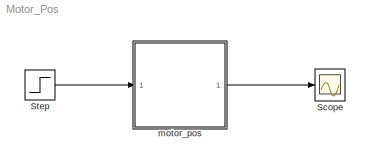
MODEL Motor_Pos
KIND model
BLOCK [Scope] Scope
  DataFormat = StructureWithTime
  Floating = off
  NumInputPorts = 1
  Ports = [1]
  SID = 35
  SampleTime = 0
  ShowLegends = off
  TimeRange = 0.2
  YMax = 10
  YMin = 0
BLOCK [Step] Step
  SID = 57
  SampleTime = 0
  Time = 0
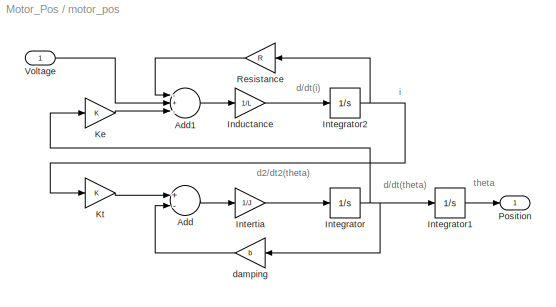
BLOCK [SubSystem] motor_pos
  FunctionWithSeparateData = off
  MaskHideContents = off
  MinAlgLoopOccurrences = off
  Opaque = off
  Ports = [1, 1]
  PropExecContextOutsideSubsystem = off
  RTWSystemCode = Auto
  RequestExecContextInheritance = off
  SID = 31
BLOCK [Sum] motor_pos/Add
  InputSameDT = off
  Inputs = +-
  OutDataTypeStr = Inherit: Inherit via internal rule
  Ports = [2, 1]
  SID = 22
  SaturateOnIntegerOverflow = off
BLOCK [Sum] motor_pos/Add1
  InputSameDT = off
  Inputs = -+-
  OutDataTypeStr = Inherit: Inherit via internal rule
  Ports = [3, 1]
  SID = 20
  SaturateOnIntegerOverflow = off
BLOCK [Gain] motor_pos/Inductance
  Gain = 1/L
  OutDataTypeStr = Inherit: Inherit via internal rule
  ParamDataTypeStr = Inherit: Inherit via internal rule
  SID = 18
  SaturateOnIntegerOverflow = off
BLOCK [Integrator] motor_pos/Integrator
  Ports = [1, 1]
  SID = 54
BLOCK [Integrator] motor_pos/Integrator1
  Ports = [1, 1]
  SID = 55
BLOCK [Integrator] motor_pos/Integrator2
  Ports = [1, 1]
  SID = 56
BLOCK [Gain] motor_pos/Intertia
  Gain = 1/J
  OutDataTypeStr = Inherit: Inherit via internal rule
  ParamDataTypeStr = Inherit: Inherit via internal rule
  SID = 21
  SaturateOnIntegerOverflow = off
BLOCK [Gain] motor_pos/Ke
  Gain = K
  OutDataTypeStr = Inherit: Inherit via internal rule
  ParamDataTypeStr = Inherit: Inherit via internal rule
  SID = 25
  SaturateOnIntegerOverflow = off
BLOCK [Gain] motor_pos/Kt
  Gain = K
  OutDataTypeStr = Inherit: Inherit via internal rule
  ParamDataTypeStr = Inherit: Inherit via internal rule
  SID = 23
  SaturateOnIntegerOverflow = off
BLOCK [Outport] motor_pos/Position
  IconDisplay = Port number
  SID = 33
BLOCK [Gain] motor_pos/Resistance
  Gain = R
  OutDataTypeStr = Inherit: Inherit via internal rule
  ParamDataTypeStr = Inherit: Inherit via internal rule
  SID = 26
  SaturateOnIntegerOverflow = off
BLOCK [Inport] motor_pos/Voltage
  IconDisplay = Port number
  SID = 32
BLOCK [Gain] motor_pos/damping
  Gain = b
  OutDataTypeStr = Inherit: Inherit via internal rule
  ParamDataTypeStr = Inherit: Inherit via internal rule
  SID = 24
  SaturateOnIntegerOverflow = off
ANNOTATION motor_pos: d/dt(i)
ANNOTATION motor_pos: d/dt(theta)
ANNOTATION motor_pos: d2/dt2(theta)
ANNOTATION motor_pos: i
ANNOTATION motor_pos: theta
LINE Step:1 -> motor_pos:1
LINE motor_pos/Add1:1 -> motor_pos/Inductance:1
LINE motor_pos/Add:1 -> motor_pos/Intertia:1
LINE motor_pos/Inductance:1 -> motor_pos/Integrator2:1
LINE motor_pos/Integrator1:1 -> motor_pos/Position:1
NET motor_pos/Integrator2:1 -> motor_pos/Kt:1, motor_pos/Resistance:1
NET motor_pos/Integrator:1 -> motor_pos/Integrator1:1, motor_pos/Ke:1, motor_pos/damping:1
LINE motor_pos/Intertia:1 -> motor_pos/Integrator:1
LINE motor_pos/Ke:1 -> motor_pos/Add1:3
LINE motor_pos/Kt:1 -> motor_pos/Add:1
LINE motor_pos/Resistance:1 -> motor_pos/Add1:1
LINE motor_pos/Voltage:1 -> motor_pos/Add1:2
LINE motor_pos/damping:1 -> motor_pos/Add:2
LINE motor_pos:1 -> Scope:1
note: NET lines group one-source signal fan-out (src -> all destinations, sorted); 1:1 wires keep LINE
